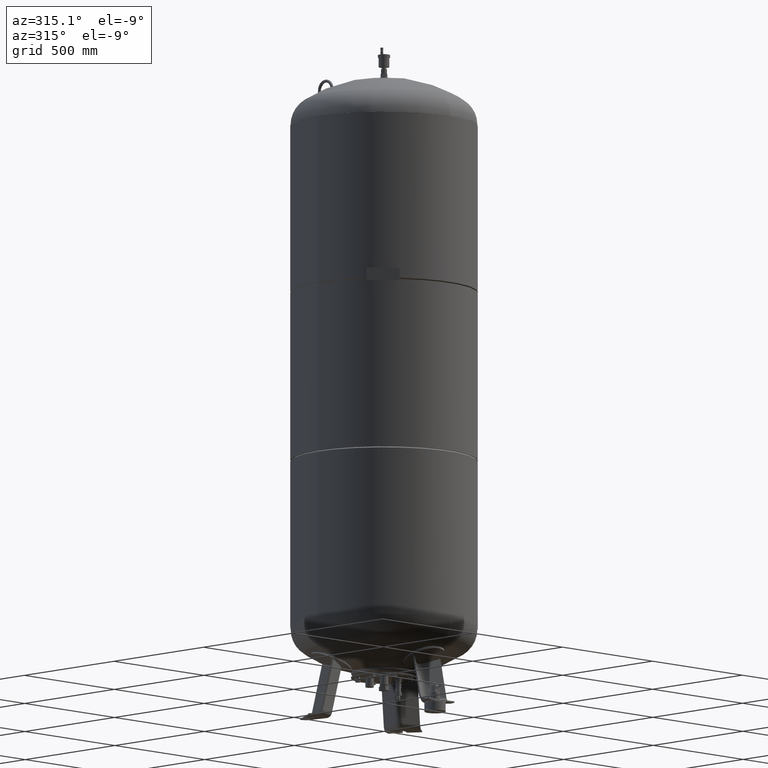
[diagram: clean part render]
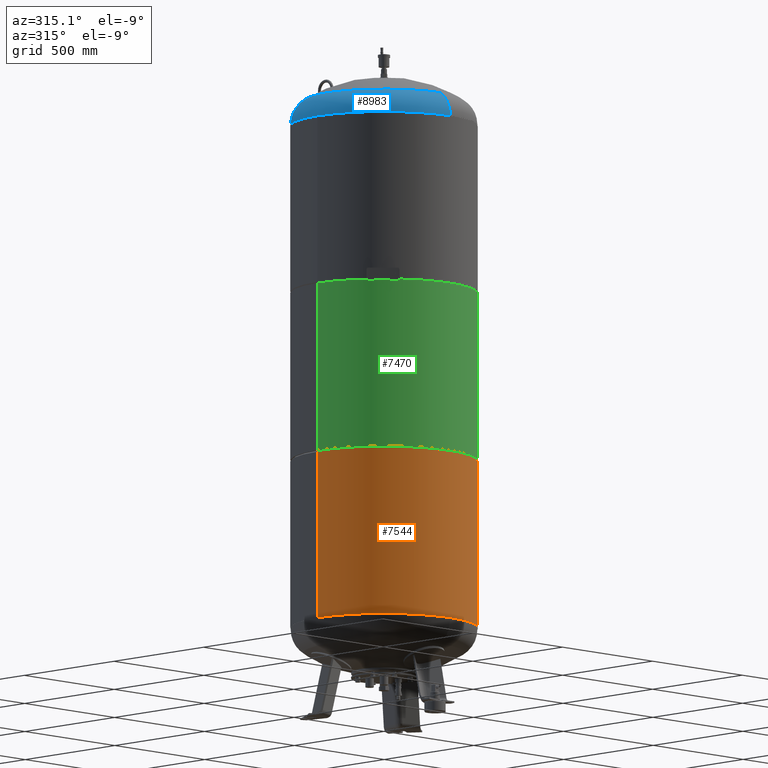
[diagram: same view with three faces highlighted in distinct colors, each labeled with its STEP entity id]
A machine part, auxiliary view with three faces highlighted in distinct colors.
Their STEP definitions:

[orange] entity #7544 — the highlighted cylindrical surface (partial cylindrical patch) has radius 370 mm, axis along (0, 0, 1).
#7478=CARTESIAN_POINT('',(370.000000000000110,0.0,1031.333333333333000));
#7479=VERTEX_POINT('',#7478);
#7495=CARTESIAN_POINT('',(-370.0,-4.531044E-014,1031.333333333333000));
#7496=VERTEX_POINT('',#7495);
#7503=CARTESIAN_POINT('',(-5.646011E-015,0.0,1031.333333333333000));
#7504=DIRECTION('',(0.0,0.0,1.0));
#7505=DIRECTION('',(1.0,0.0,0.0));
#7506=AXIS2_PLACEMENT_3D('',#7503,#7504,#7505);
#7507=CIRCLE('',#7506,370.000000000000110);
#7508=EDGE_CURVE('',#7496,#7479,#7507,.T.);
#7513=CARTESIAN_POINT('',(-1.116699E-014,0.0,700.166666666666520));
#7514=DIRECTION('',(1.667129E-017,0.0,1.0));
#7515=DIRECTION('',(1.0,0.0,0.0));
#7516=AXIS2_PLACEMENT_3D('',#7513,#7514,#7515);
#7517=CYLINDRICAL_SURFACE('',#7516,370.0);
#7518=CARTESIAN_POINT('',(369.999999999999890,0.0,368.999999999999890));
#7519=VERTEX_POINT('',#7518);
#7520=CARTESIAN_POINT('',(370.000000000000110,0.0,1031.333333333333000));
#7521=DIRECTION('',(0.0,0.0,-1.0));
#7522=VECTOR('',#7521,662.333333333333140);
#7523=LINE('',#7520,#7522);
#7524=EDGE_CURVE('',#7479,#7519,#7523,.T.);
#7525=ORIENTED_EDGE('',*,*,#7524,.F.);
#7526=ORIENTED_EDGE('',*,*,#7508,.F.);
#7527=CARTESIAN_POINT('',(-370.0,-4.531044E-014,369.0));
#7528=VERTEX_POINT('',#7527);
#7529=CARTESIAN_POINT('',(-370.0,-4.531044E-014,1031.333333333333000));
#7530=DIRECTION('',(0.0,0.0,-1.0));
#7531=VECTOR('',#7530,662.333333333333030);
#7532=LINE('',#7529,#7531);
#7533=EDGE_CURVE('',#7496,#7528,#7532,.T.);
#7534=ORIENTED_EDGE('',*,*,#7533,.T.);
#7535=CARTESIAN_POINT('',(-1.668796E-014,0.0,369.0));
#7536=DIRECTION('',(0.0,0.0,1.0));
#7537=DIRECTION('',(1.0,0.0,0.0));
#7538=AXIS2_PLACEMENT_3D('',#7535,#7536,#7537);
#7539=CIRCLE('',#7538,369.999999999999890);
#7540=EDGE_CURVE('',#7528,#7519,#7539,.T.);
#7541=ORIENTED_EDGE('',*,*,#7540,.T.);
#7542=EDGE_LOOP('',(#7525,#7526,#7534,#7541));
#7543=FACE_OUTER_BOUND('',#7542,.T.);
#7544=ADVANCED_FACE('',(#7543),#7517,.T.);

[blue] entity #8983 — the highlighted toroidal blend (fillet) surface has major radius 254.5 mm and minor (blend) radius 115.5 mm.
#8729=CARTESIAN_POINT('',(-370.0,1.062956E-014,2371.206120388130300));
#8730=VERTEX_POINT('',#8729);
#8737=CARTESIAN_POINT('',(2.218985E-014,369.999999999999940,2371.206120388130300));
#8738=VERTEX_POINT('',#8737);
#8739=CARTESIAN_POINT('',(-2.312058E-014,-3.468087E-014,2371.206120388130300));
#8740=DIRECTION('',(0.0,0.0,-1.0));
#8741=DIRECTION('',(1.0,0.0,0.0));
#8742=AXIS2_PLACEMENT_3D('',#8739,#8740,#8741);
#8743=CIRCLE('',#8742,370.0);
#8744=EDGE_CURVE('',#8730,#8738,#8743,.T.);
#8761=CARTESIAN_POINT('',(-2.312058E-014,-370.000000000000060,2371.206120388130300));
#8762=VERTEX_POINT('',#8761);
#8763=CARTESIAN_POINT('',(-1.114251E-014,-315.931034482758610,2469.014494274920300));
#8764=VERTEX_POINT('',#8763);
#8765=CARTESIAN_POINT('',(-2.312058E-014,-254.500000000000060,2371.206120388130300));
#8766=DIRECTION('',(-1.0,0.0,0.0));
#8767=DIRECTION('',(0.0,-1.0,0.0));
#8768=AXIS2_PLACEMENT_3D('',#8765,#8766,#8767);
#8769=CIRCLE('',#8768,115.500000000000000);
#8770=EDGE_CURVE('',#8762,#8764,#8769,.T.);
#8780=CARTESIAN_POINT('',(2.754660E-014,315.931034482758610,2469.014494274920300));
#8781=VERTEX_POINT('',#8780);
#8782=CARTESIAN_POINT('',(8.045650E-015,254.500000000000000,2371.206120388130300));
#8783=DIRECTION('',(1.0,0.0,0.0));
#8784=DIRECTION('',(0.0,1.0,0.0));
#8785=AXIS2_PLACEMENT_3D('',#8782,#8783,#8784);
#8786=CIRCLE('',#8785,115.500000000000000);
#8787=EDGE_CURVE('',#8738,#8781,#8786,.T.);
#8955=CARTESIAN_POINT('',(-1.114251E-014,-1.671377E-014,2469.014494274920300));
#8956=DIRECTION('',(0.0,0.0,-1.0));
#8957=DIRECTION('',(1.0,0.0,0.0));
#8958=AXIS2_PLACEMENT_3D('',#8955,#8956,#8957);
#8959=CIRCLE('',#8958,315.931034482758610);
#8960=EDGE_CURVE('',#8764,#8781,#8959,.T.);
#8965=CARTESIAN_POINT('',(-2.312058E-014,-3.468087E-014,2371.206120388130300));
#8966=DIRECTION('',(-1.224647E-016,-1.836970E-016,-1.0));
#8967=DIRECTION('',(0.0,-1.0,0.0));
#8968=AXIS2_PLACEMENT_3D('',#8965,#8966,#8967);
#8969=TOROIDAL_SURFACE('',#8968,254.500000000000030,115.500000000000000);
#8970=ORIENTED_EDGE('',*,*,#8770,.T.);
#8971=ORIENTED_EDGE('',*,*,#8960,.T.);
#8972=ORIENTED_EDGE('',*,*,#8787,.F.);
#8973=ORIENTED_EDGE('',*,*,#8744,.F.);
#8974=CARTESIAN_POINT('',(-2.312058E-014,-3.468087E-014,2371.206120388130300));
#8975=DIRECTION('',(0.0,0.0,-1.0));
#8976=DIRECTION('',(1.0,0.0,0.0));
#8977=AXIS2_PLACEMENT_3D('',#8974,#8975,#8976);
#8978=CIRCLE('',#8977,370.0);
#8979=EDGE_CURVE('',#8762,#8730,#8978,.T.);
#8980=ORIENTED_EDGE('',*,*,#8979,.F.);
#8981=EDGE_LOOP('',(#8970,#8971,#8972,#8973,#8980));
#8982=FACE_OUTER_BOUND('',#8981,.T.);
#8983=ADVANCED_FACE('',(#8982),#8969,.T.);

[green] entity #7470 — the highlighted cylindrical surface (partial cylindrical patch) has radius 370 mm, axis along (0, 0, 1).
#7429=CARTESIAN_POINT('',(0.0,0.0,1370.0));
#7430=DIRECTION('',(1.667129E-017,0.0,1.0));
#7431=DIRECTION('',(1.0,0.0,0.0));
#7432=AXIS2_PLACEMENT_3D('',#7429,#7430,#7431);
#7433=CYLINDRICAL_SURFACE('',#7432,369.999999999999430);
#7434=CARTESIAN_POINT('',(369.999999999999490,0.0,1703.666666666666700));
#7435=VERTEX_POINT('',#7434);
#7436=CARTESIAN_POINT('',(369.999999999999370,0.0,1036.333333333333000));
#7437=VERTEX_POINT('',#7436);
#7438=CARTESIAN_POINT('',(369.999999999999490,0.0,1703.666666666666700));
#7439=DIRECTION('',(0.0,0.0,-1.0));
#7440=VECTOR('',#7439,667.333333333333710);
#7441=LINE('',#7438,#7440);
#7442=EDGE_CURVE('',#7435,#7437,#7441,.T.);
#7443=ORIENTED_EDGE('',*,*,#7442,.F.);
#7444=CARTESIAN_POINT('',(-369.999999999999430,-4.531044E-014,1703.666666666666700));
#7445=VERTEX_POINT('',#7444);
#7446=CARTESIAN_POINT('',(5.562655E-015,0.0,1703.666666666666700));
#7447=DIRECTION('',(0.0,0.0,1.0));
#7448=DIRECTION('',(1.0,0.0,0.0));
#7449=AXIS2_PLACEMENT_3D('',#7446,#7447,#7448);
#7450=CIRCLE('',#7449,369.999999999999490);
#7451=EDGE_CURVE('',#7445,#7435,#7450,.T.);
#7452=ORIENTED_EDGE('',*,*,#7451,.F.);
#7453=CARTESIAN_POINT('',(-369.999999999999430,-4.531044E-014,1036.333333333333000));
#7454=VERTEX_POINT('',#7453);
#7455=CARTESIAN_POINT('',(-369.999999999999430,-4.531044E-014,1703.666666666666700));
#7456=DIRECTION('',(0.0,0.0,-1.0));
#7457=VECTOR('',#7456,667.333333333333710);
#7458=LINE('',#7455,#7457);
#7459=EDGE_CURVE('',#7445,#7454,#7458,.T.);
#7460=ORIENTED_EDGE('',*,*,#7459,.T.);
#7461=CARTESIAN_POINT('',(-5.562655E-015,0.0,1036.333333333333000));
#7462=DIRECTION('',(0.0,0.0,1.0));
#7463=DIRECTION('',(1.0,0.0,0.0));
#7464=AXIS2_PLACEMENT_3D('',#7461,#7462,#7463);
#7465=CIRCLE('',#7464,369.999999999999370);
#7466=EDGE_CURVE('',#7454,#7437,#7465,.T.);
#7467=ORIENTED_EDGE('',*,*,#7466,.T.);
#7468=EDGE_LOOP('',(#7443,#7452,#7460,#7467));
#7469=FACE_OUTER_BOUND('',#7468,.T.);
#7470=ADVANCED_FACE('',(#7469),#7433,.T.);